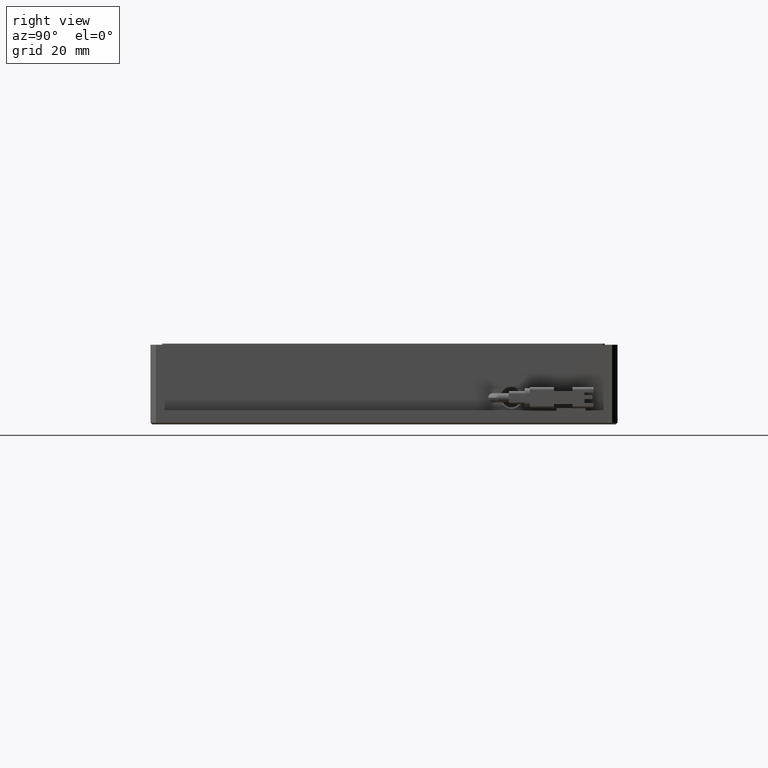
[diagram: clean part render]
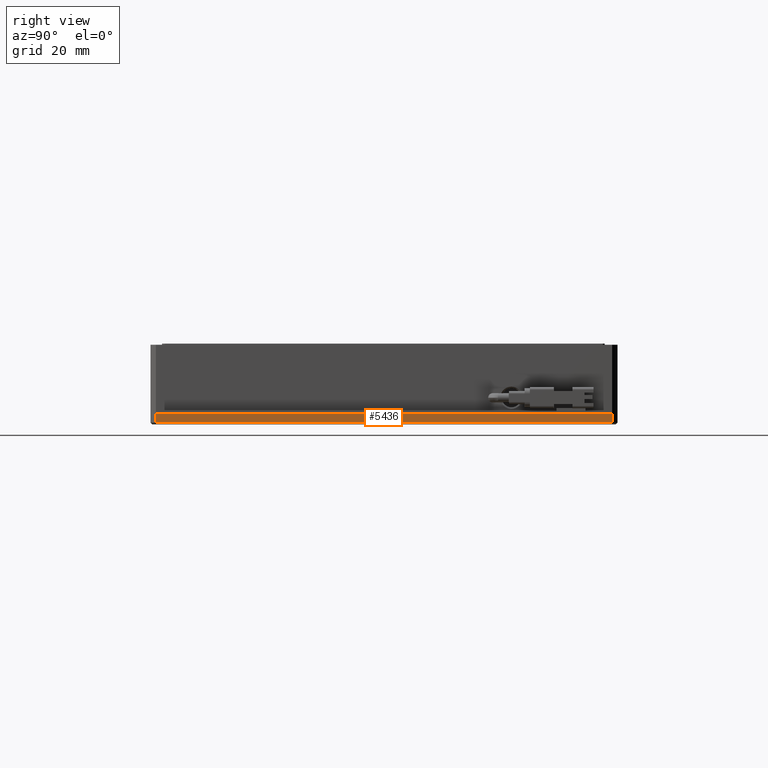
[diagram: same view with one face highlighted and labeled with its STEP entity id]
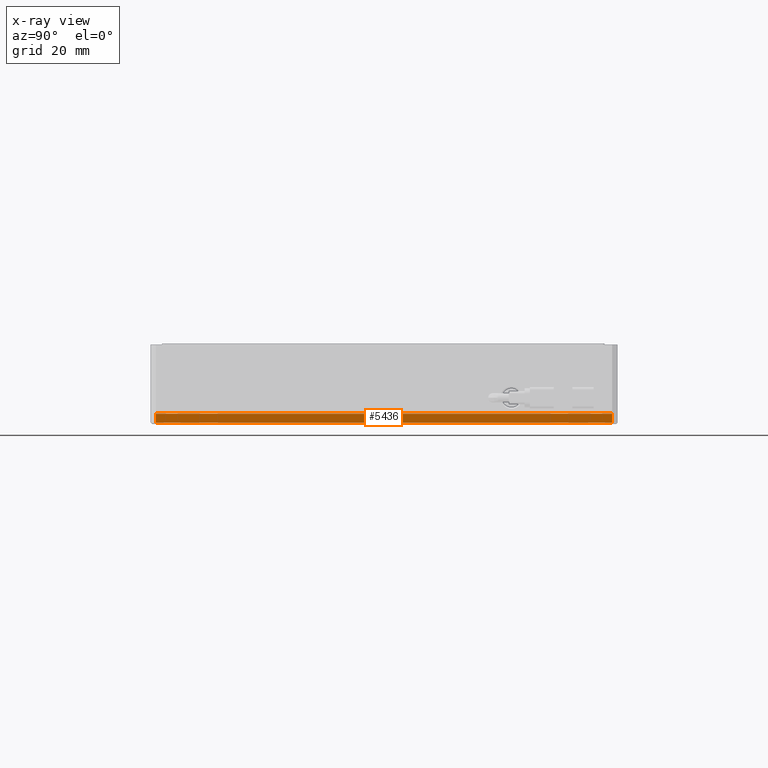
[diagram: x-ray of the same camera — body ghosted, the highlighted face saturated]
A machine part, right view. The second image highlights one B-rep face of the part: STEP entity #5436.
The next image is the same camera in x-ray: the body ghosted, the highlighted face saturated — about 0% of this face is hidden behind the body in this view.
In plain terms, the highlighted planar face has unit normal (-1, 0, 0).
Its self-contained STEP definition (entity closure, byte-faithful):
#591 = VECTOR ( 'NONE', #14953, 1000.000000000000000 ) ;
#1554 = VERTEX_POINT ( 'NONE', #9638 ) ;
#2713 = CARTESIAN_POINT ( 'NONE',  ( 67.05231004200074100, 38.79992363497520800, -4.547577592273199800E-012 ) ) ;
#2978 = CARTESIAN_POINT ( 'NONE',  ( 67.05231004200074100, -47.20007636502479900, -1.700000000004553400 ) ) ;
#3138 = ORIENTED_EDGE ( 'NONE', *, *, #11058, .F. ) ;
#3142 = VECTOR ( 'NONE', #8562, 1000.000000000000000 ) ;
#3145 = VECTOR ( 'NONE', #10751, 1000.000000000000000 ) ;
#3271 = VERTEX_POINT ( 'NONE', #2978 ) ;
#4057 = CARTESIAN_POINT ( 'NONE',  ( 67.05231004200074100, -47.20007636502479900, -4.547577592273199800E-012 ) ) ;
#4343 = LINE ( 'NONE', #4057, #591 ) ;
#5436 = ADVANCED_FACE ( 'NONE', ( #5939 ), #9066, .F. ) ;
#5939 = FACE_OUTER_BOUND ( 'NONE', #16818, .T. ) ;
#6356 = CARTESIAN_POINT ( 'NONE',  ( 67.05231004200074100, -48.20007636502478500, -4.547577592273199800E-012 ) ) ;
#7636 = VERTEX_POINT ( 'NONE', #13339 ) ;
#7791 = DIRECTION ( 'NONE',  ( 0.0000000000000000000, 0.0000000000000000000, 1.000000000000000000 ) ) ;
#7990 = ORIENTED_EDGE ( 'NONE', *, *, #16385, .F. ) ;
#8046 = VERTEX_POINT ( 'NONE', #10366 ) ;
#8562 = DIRECTION ( 'NONE',  ( -0.0000000000000000000, -1.000000000000000000, -0.0000000000000000000 ) ) ;
#9066 = PLANE ( 'NONE',  #16405 ) ;
#9081 = VECTOR ( 'NONE', #17726, 1000.000000000000000 ) ;
#9388 = CARTESIAN_POINT ( 'NONE',  ( 67.05231004200074100, -48.20007636502478500, -1.700000000004553000 ) ) ;
#9638 = CARTESIAN_POINT ( 'NONE',  ( 67.05231004200074100, 38.79992363497520800, -1.700000000004544500 ) ) ;
#10366 = CARTESIAN_POINT ( 'NONE',  ( 67.05231004200074100, -47.20007636502479900, -4.547577592273199800E-012 ) ) ;
#10467 = LINE ( 'NONE', #16667, #3142 ) ;
#10751 = DIRECTION ( 'NONE',  ( -0.0000000000000000000, -1.000000000000000000, 0.0000000000000000000 ) ) ;
#11058 = EDGE_CURVE ( 'NONE', #3271, #8046, #4343, .T. ) ;
#12397 = EDGE_CURVE ( 'NONE', #1554, #3271, #14506, .T. ) ;
#12648 = LINE ( 'NONE', #2713, #9081 ) ;
#13339 = CARTESIAN_POINT ( 'NONE',  ( 67.05231004200074100, 38.79992363497520800, -4.547577592273199800E-012 ) ) ;
#14248 = ORIENTED_EDGE ( 'NONE', *, *, #14461, .T. ) ;
#14461 = EDGE_CURVE ( 'NONE', #7636, #8046, #10467, .T. ) ;
#14506 = LINE ( 'NONE', #9388, #3145 ) ;
#14953 = DIRECTION ( 'NONE',  ( 0.0000000000000000000, 0.0000000000000000000, 1.000000000000000000 ) ) ;
#15268 = ORIENTED_EDGE ( 'NONE', *, *, #12397, .F. ) ;
#15849 = DIRECTION ( 'NONE',  ( -1.000000000000000000, 0.0000000000000000000, 0.0000000000000000000 ) ) ;
#16385 = EDGE_CURVE ( 'NONE', #7636, #1554, #12648, .T. ) ;
#16405 = AXIS2_PLACEMENT_3D ( 'NONE', #6356, #15849, #7791 ) ;
#16667 = CARTESIAN_POINT ( 'NONE',  ( 67.05231004200074100, 39.79992363497521500, -4.547577592273199800E-012 ) ) ;
#16818 = EDGE_LOOP ( 'NONE', ( #15268, #7990, #14248, #3138 ) ) ;
#17726 = DIRECTION ( 'NONE',  ( -0.0000000000000000000, -0.0000000000000000000, -1.000000000000000000 ) ) ;